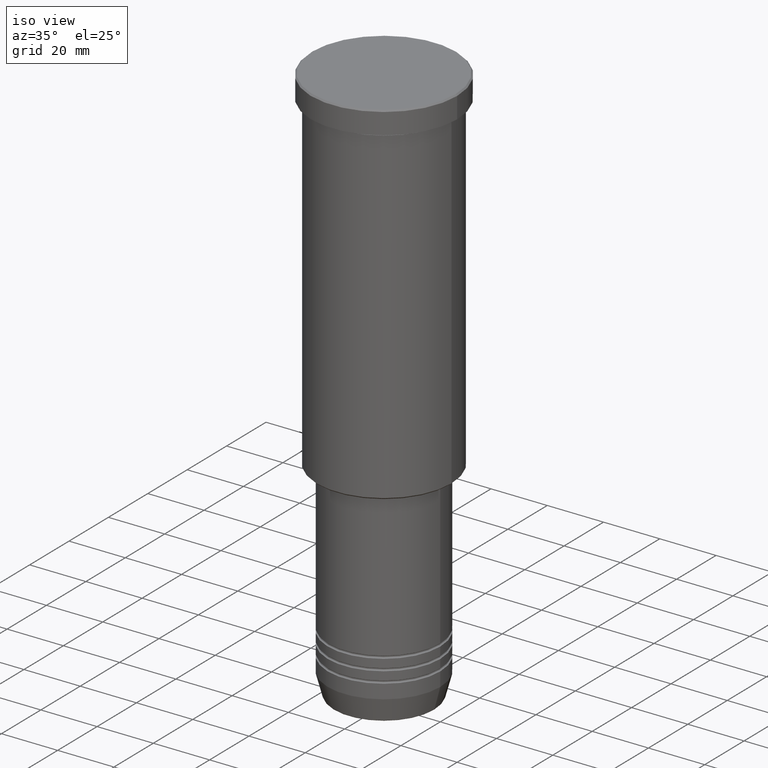
[diagram: clean part render]
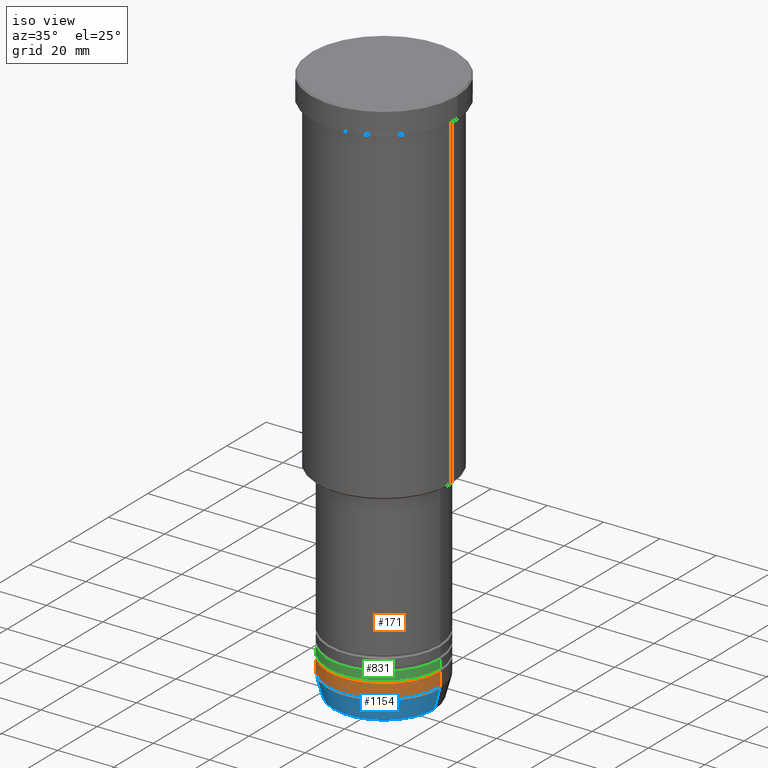
[diagram: same view with three faces highlighted in distinct colors, each labeled with its STEP entity id]
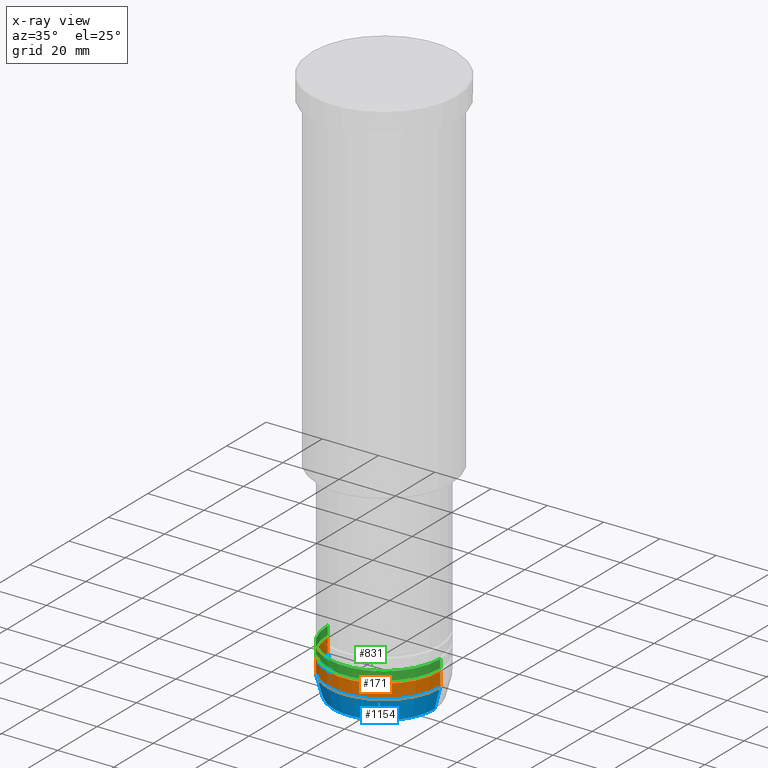
[diagram: x-ray of the same camera — body ghosted, the three highlighted faces saturated]
A machine part, iso view with three faces highlighted in distinct colors.
The next image is the same camera in x-ray (body ghosted, the three faces saturated) — at least one of them is partly hidden behind the body in this view.
Their STEP definitions:

[orange] entity #171 — the highlighted cylindrical surface (partial cylindrical patch) has radius 20 mm, axis along (-0, -0, 1).
#45 = EDGE_CURVE ( 'NONE', #1081, #113, #919, .T. ) ;
#53 = CARTESIAN_POINT ( 'NONE',  ( 20.00000000000000355, 0.000000000000000000, -192.0000000000000284 ) ) ;
#63 = CARTESIAN_POINT ( 'NONE',  ( -20.00000000000000000, 2.449293598294706513E-15, -187.0000000000000284 ) ) ;
#70 = AXIS2_PLACEMENT_3D ( 'NONE', #413, #981, #493 ) ;
#102 = EDGE_CURVE ( 'NONE', #120, #763, #651, .T. ) ;
#110 = DIRECTION ( 'NONE',  ( -0.000000000000000000, -0.000000000000000000, 1.000000000000000000 ) ) ;
#113 = VERTEX_POINT ( 'NONE', #399 ) ;
#120 = VERTEX_POINT ( 'NONE', #625 ) ;
#171 = ADVANCED_FACE ( 'NONE', ( #339 ), #1171, .T. ) ;
#182 = DIRECTION ( 'NONE',  ( -0.000000000000000000, -0.000000000000000000, 1.000000000000000000 ) ) ;
#195 = EDGE_CURVE ( 'NONE', #120, #1081, #296, .T. ) ;
#207 = CIRCLE ( 'NONE', #70, 20.00000000000000000 ) ;
#230 = EDGE_CURVE ( 'NONE', #763, #113, #207, .T. ) ;
#236 = EDGE_LOOP ( 'NONE', ( #1166, #423, #1108, #759 ) ) ;
#273 = VECTOR ( 'NONE', #1137, 1000.000000000000000 ) ;
#296 = CIRCLE ( 'NONE', #990, 20.00000000000000355 ) ;
#339 = FACE_OUTER_BOUND ( 'NONE', #236, .T. ) ;
#388 = CARTESIAN_POINT ( 'NONE',  ( -20.00000000000000355, 2.449293598294706907E-15, 0.000000000000000000 ) ) ;
#399 = CARTESIAN_POINT ( 'NONE',  ( 20.00000000000000000, 0.000000000000000000, -187.0000000000000284 ) ) ;
#413 = CARTESIAN_POINT ( 'NONE',  ( 0.000000000000000000, 0.000000000000000000, -187.0000000000000284 ) ) ;
#423 = ORIENTED_EDGE ( 'NONE', *, *, #195, .T. ) ;
#425 = VECTOR ( 'NONE', #828, 1000.000000000000000 ) ;
#493 = DIRECTION ( 'NONE',  ( 1.000000000000000000, 0.000000000000000000, 0.000000000000000000 ) ) ;
#501 = AXIS2_PLACEMENT_3D ( 'NONE', #1099, #182, #538 ) ;
#538 = DIRECTION ( 'NONE',  ( 1.000000000000000000, 0.000000000000000000, 0.000000000000000000 ) ) ;
#545 = CARTESIAN_POINT ( 'NONE',  ( 0.000000000000000000, 0.000000000000000000, -192.0000000000000284 ) ) ;
#625 = CARTESIAN_POINT ( 'NONE',  ( -20.00000000000000355, 2.449293598294706907E-15, -192.0000000000000284 ) ) ;
#651 = LINE ( 'NONE', #388, #273 ) ;
#747 = CARTESIAN_POINT ( 'NONE',  ( 20.00000000000000355, 0.000000000000000000, 0.000000000000000000 ) ) ;
#759 = ORIENTED_EDGE ( 'NONE', *, *, #230, .F. ) ;
#763 = VERTEX_POINT ( 'NONE', #63 ) ;
#828 = DIRECTION ( 'NONE',  ( -0.000000000000000000, -0.000000000000000000, 1.000000000000000000 ) ) ;
#919 = LINE ( 'NONE', #747, #425 ) ;
#947 = DIRECTION ( 'NONE',  ( 1.000000000000000000, 0.000000000000000000, 0.000000000000000000 ) ) ;
#981 = DIRECTION ( 'NONE',  ( -0.000000000000000000, -0.000000000000000000, 1.000000000000000000 ) ) ;
#990 = AXIS2_PLACEMENT_3D ( 'NONE', #545, #110, #947 ) ;
#1081 = VERTEX_POINT ( 'NONE', #53 ) ;
#1099 = CARTESIAN_POINT ( 'NONE',  ( 0.000000000000000000, 0.000000000000000000, 0.000000000000000000 ) ) ;
#1108 = ORIENTED_EDGE ( 'NONE', *, *, #45, .T. ) ;
#1137 = DIRECTION ( 'NONE',  ( -0.000000000000000000, -0.000000000000000000, 1.000000000000000000 ) ) ;
#1166 = ORIENTED_EDGE ( 'NONE', *, *, #102, .F. ) ;
#1171 = CYLINDRICAL_SURFACE ( 'NONE', #501, 20.00000000000000355 ) ;

[blue] entity #1154 — the highlighted conical surface has half-angle 15 deg.
#22 = EDGE_CURVE ( 'NONE', #1172, #1081, #196, .T. ) ;
#53 = CARTESIAN_POINT ( 'NONE',  ( 20.00000000000000355, 0.000000000000000000, -192.0000000000000284 ) ) ;
#62 = DIRECTION ( 'NONE',  ( -0.000000000000000000, -0.000000000000000000, 1.000000000000000000 ) ) ;
#69 = AXIS2_PLACEMENT_3D ( 'NONE', #151, #62, #896 ) ;
#87 = CIRCLE ( 'NONE', #856, 17.95570587970607690 ) ;
#110 = DIRECTION ( 'NONE',  ( -0.000000000000000000, -0.000000000000000000, 1.000000000000000000 ) ) ;
#111 = VERTEX_POINT ( 'NONE', #307 ) ;
#120 = VERTEX_POINT ( 'NONE', #625 ) ;
#139 = ORIENTED_EDGE ( 'NONE', *, *, #195, .F. ) ;
#151 = CARTESIAN_POINT ( 'NONE',  ( 0.000000000000000000, 0.000000000000000000, -192.0000000000000284 ) ) ;
#153 = DIRECTION ( 'NONE',  ( 1.000000000000000000, 0.000000000000000000, 0.000000000000000000 ) ) ;
#180 = ORIENTED_EDGE ( 'NONE', *, *, #668, .F. ) ;
#195 = EDGE_CURVE ( 'NONE', #120, #1081, #296, .T. ) ;
#196 = LINE ( 'NONE', #737, #574 ) ;
#264 = EDGE_CURVE ( 'NONE', #111, #1172, #87, .T. ) ;
#296 = CIRCLE ( 'NONE', #990, 20.00000000000000355 ) ;
#307 = CARTESIAN_POINT ( 'NONE',  ( -17.95570587970607690, 2.324116685748021371E-15, -199.6294095225512990 ) ) ;
#319 = DIRECTION ( 'NONE',  ( -0.2588190451025213501, 3.169619151431772337E-17, 0.9659258262890680902 ) ) ;
#409 = CARTESIAN_POINT ( 'NONE',  ( -20.00000000000000355, 2.449293598294706907E-15, -192.0000000000000284 ) ) ;
#417 = DIRECTION ( 'NONE',  ( -0.000000000000000000, -0.000000000000000000, 1.000000000000000000 ) ) ;
#545 = CARTESIAN_POINT ( 'NONE',  ( 0.000000000000000000, 0.000000000000000000, -192.0000000000000284 ) ) ;
#574 = VECTOR ( 'NONE', #937, 1000.000000000000000 ) ;
#577 = VECTOR ( 'NONE', #319, 1000.000000000000000 ) ;
#601 = CARTESIAN_POINT ( 'NONE',  ( 17.95570587970607690, 0.000000000000000000, -199.6294095225512990 ) ) ;
#625 = CARTESIAN_POINT ( 'NONE',  ( -20.00000000000000355, 2.449293598294706907E-15, -192.0000000000000284 ) ) ;
#668 = EDGE_CURVE ( 'NONE', #111, #120, #874, .T. ) ;
#737 = CARTESIAN_POINT ( 'NONE',  ( 20.00000000000000355, 0.000000000000000000, -192.0000000000000284 ) ) ;
#856 = AXIS2_PLACEMENT_3D ( 'NONE', #877, #417, #153 ) ;
#872 = ORIENTED_EDGE ( 'NONE', *, *, #22, .T. ) ;
#874 = LINE ( 'NONE', #409, #577 ) ;
#877 = CARTESIAN_POINT ( 'NONE',  ( 0.000000000000000000, 0.000000000000000000, -199.6294095225512990 ) ) ;
#896 = DIRECTION ( 'NONE',  ( 1.000000000000000000, 0.000000000000000000, 0.000000000000000000 ) ) ;
#907 = FACE_OUTER_BOUND ( 'NONE', #1013, .T. ) ;
#937 = DIRECTION ( 'NONE',  ( 0.2588190451025213501, 0.000000000000000000, 0.9659258262890680902 ) ) ;
#947 = DIRECTION ( 'NONE',  ( 1.000000000000000000, 0.000000000000000000, 0.000000000000000000 ) ) ;
#990 = AXIS2_PLACEMENT_3D ( 'NONE', #545, #110, #947 ) ;
#1013 = EDGE_LOOP ( 'NONE', ( #180, #1098, #872, #139 ) ) ;
#1081 = VERTEX_POINT ( 'NONE', #53 ) ;
#1098 = ORIENTED_EDGE ( 'NONE', *, *, #264, .T. ) ;
#1154 = ADVANCED_FACE ( 'NONE', ( #907 ), #1180, .T. ) ;
#1172 = VERTEX_POINT ( 'NONE', #601 ) ;
#1180 = CONICAL_SURFACE ( 'NONE', #69, 20.00000000000000355, 0.2617993877991500740 ) ;

[green] entity #831 — the highlighted cylindrical surface (partial cylindrical patch) has radius 20 mm, axis along (-0, -0, 1).
#11 = CYLINDRICAL_SURFACE ( 'NONE', #534, 20.00000000000000355 ) ;
#18 = CARTESIAN_POINT ( 'NONE',  ( 20.00000000000000355, 0.000000000000000000, -186.0000000000000000 ) ) ;
#28 = VERTEX_POINT ( 'NONE', #951 ) ;
#46 = CARTESIAN_POINT ( 'NONE',  ( -20.00000000000000355, 2.449293598294706907E-15, -186.0000000000000000 ) ) ;
#101 = VERTEX_POINT ( 'NONE', #1051 ) ;
#138 = DIRECTION ( 'NONE',  ( 1.000000000000000000, 0.000000000000000000, 0.000000000000000000 ) ) ;
#216 = LINE ( 'NONE', #1037, #487 ) ;
#238 = AXIS2_PLACEMENT_3D ( 'NONE', #1147, #299, #138 ) ;
#250 = ORIENTED_EDGE ( 'NONE', *, *, #588, .T. ) ;
#271 = CIRCLE ( 'NONE', #450, 20.00000000000000355 ) ;
#289 = ORIENTED_EDGE ( 'NONE', *, *, #619, .T. ) ;
#298 = DIRECTION ( 'NONE',  ( 1.000000000000000000, 0.000000000000000000, 0.000000000000000000 ) ) ;
#299 = DIRECTION ( 'NONE',  ( -0.000000000000000000, -0.000000000000000000, 1.000000000000000000 ) ) ;
#327 = CIRCLE ( 'NONE', #238, 20.00000000000000000 ) ;
#335 = EDGE_LOOP ( 'NONE', ( #469, #289, #250, #801 ) ) ;
#351 = DIRECTION ( 'NONE',  ( -0.000000000000000000, -0.000000000000000000, 1.000000000000000000 ) ) ;
#450 = AXIS2_PLACEMENT_3D ( 'NONE', #842, #748, #298 ) ;
#454 = FACE_OUTER_BOUND ( 'NONE', #335, .T. ) ;
#469 = ORIENTED_EDGE ( 'NONE', *, *, #479, .F. ) ;
#479 = EDGE_CURVE ( 'NONE', #495, #101, #216, .T. ) ;
#487 = VECTOR ( 'NONE', #876, 1000.000000000000000 ) ;
#495 = VERTEX_POINT ( 'NONE', #46 ) ;
#534 = AXIS2_PLACEMENT_3D ( 'NONE', #709, #351, #729 ) ;
#583 = LINE ( 'NONE', #880, #1091 ) ;
#588 = EDGE_CURVE ( 'NONE', #803, #28, #583, .T. ) ;
#619 = EDGE_CURVE ( 'NONE', #495, #803, #271, .T. ) ;
#639 = DIRECTION ( 'NONE',  ( -0.000000000000000000, -0.000000000000000000, 1.000000000000000000 ) ) ;
#709 = CARTESIAN_POINT ( 'NONE',  ( 0.000000000000000000, 0.000000000000000000, 0.000000000000000000 ) ) ;
#729 = DIRECTION ( 'NONE',  ( 1.000000000000000000, 0.000000000000000000, 0.000000000000000000 ) ) ;
#748 = DIRECTION ( 'NONE',  ( -0.000000000000000000, -0.000000000000000000, 1.000000000000000000 ) ) ;
#801 = ORIENTED_EDGE ( 'NONE', *, *, #956, .F. ) ;
#803 = VERTEX_POINT ( 'NONE', #18 ) ;
#831 = ADVANCED_FACE ( 'NONE', ( #454 ), #11, .T. ) ;
#842 = CARTESIAN_POINT ( 'NONE',  ( 0.000000000000000000, 0.000000000000000000, -186.0000000000000000 ) ) ;
#876 = DIRECTION ( 'NONE',  ( -0.000000000000000000, -0.000000000000000000, 1.000000000000000000 ) ) ;
#880 = CARTESIAN_POINT ( 'NONE',  ( 20.00000000000000355, 0.000000000000000000, 0.000000000000000000 ) ) ;
#951 = CARTESIAN_POINT ( 'NONE',  ( 20.00000000000000000, 0.000000000000000000, -183.0000000000000284 ) ) ;
#956 = EDGE_CURVE ( 'NONE', #101, #28, #327, .T. ) ;
#1037 = CARTESIAN_POINT ( 'NONE',  ( -20.00000000000000355, 2.449293598294706907E-15, 0.000000000000000000 ) ) ;
#1051 = CARTESIAN_POINT ( 'NONE',  ( -20.00000000000000000, 2.449293598294706513E-15, -183.0000000000000284 ) ) ;
#1091 = VECTOR ( 'NONE', #639, 1000.000000000000000 ) ;
#1147 = CARTESIAN_POINT ( 'NONE',  ( 0.000000000000000000, 0.000000000000000000, -183.0000000000000284 ) ) ;